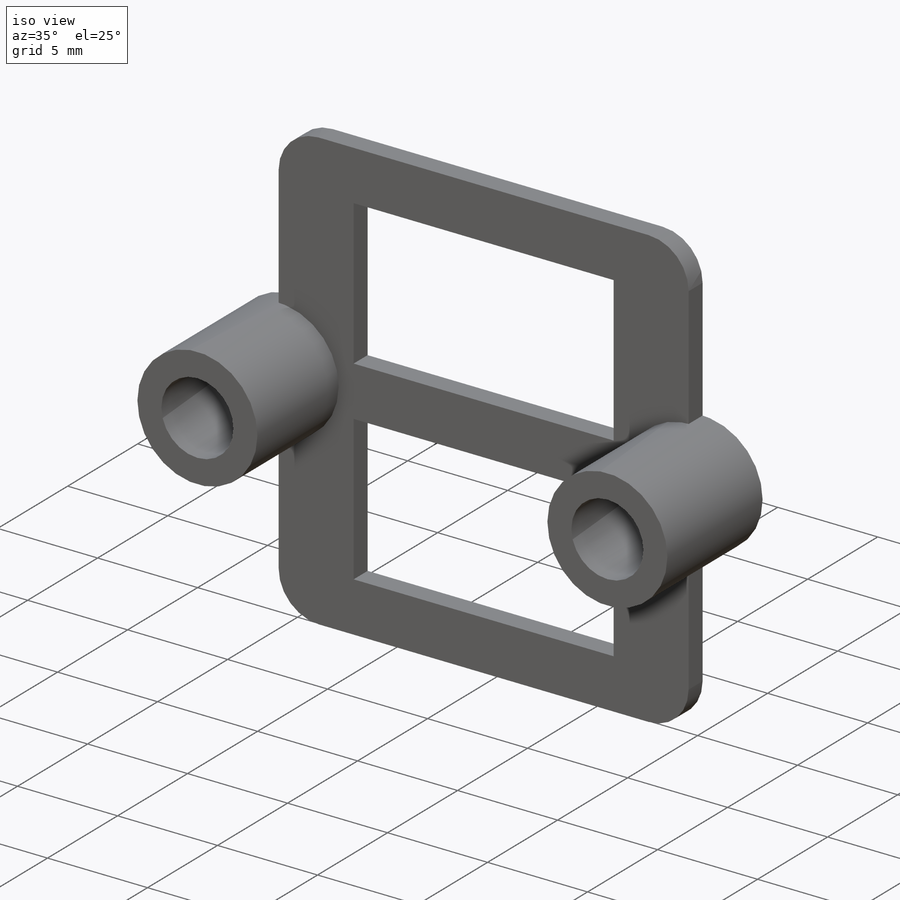
[diagram: iso view]
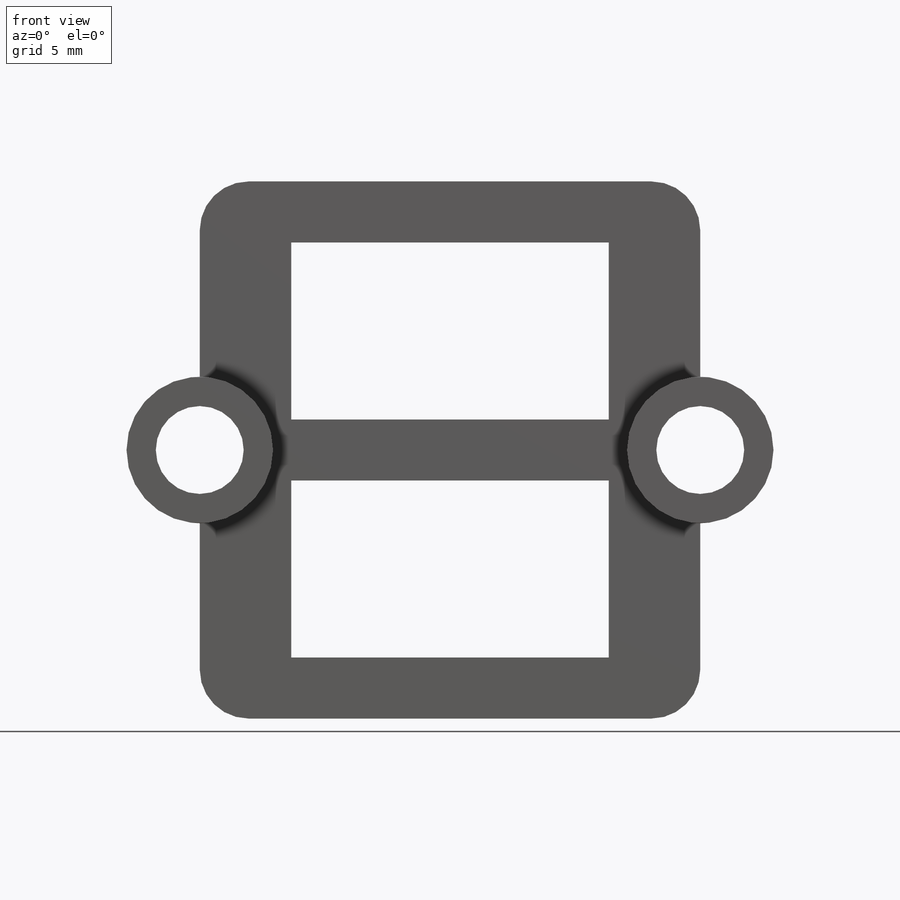
[diagram: front view]
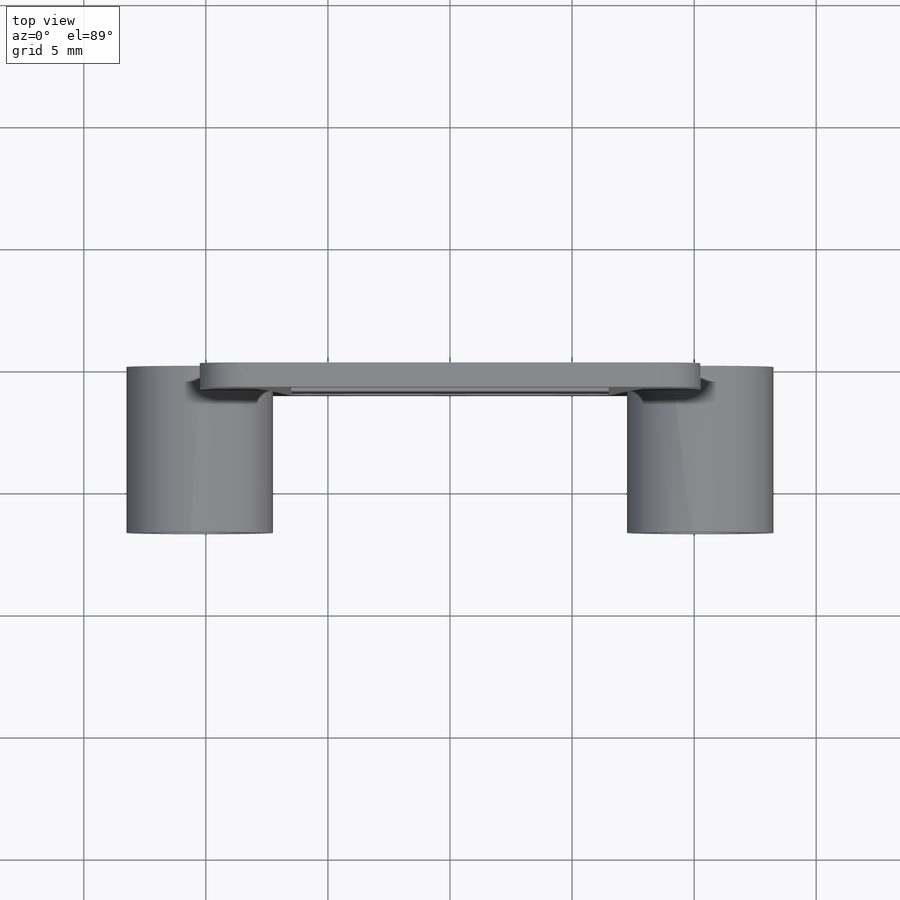
[diagram: top view]
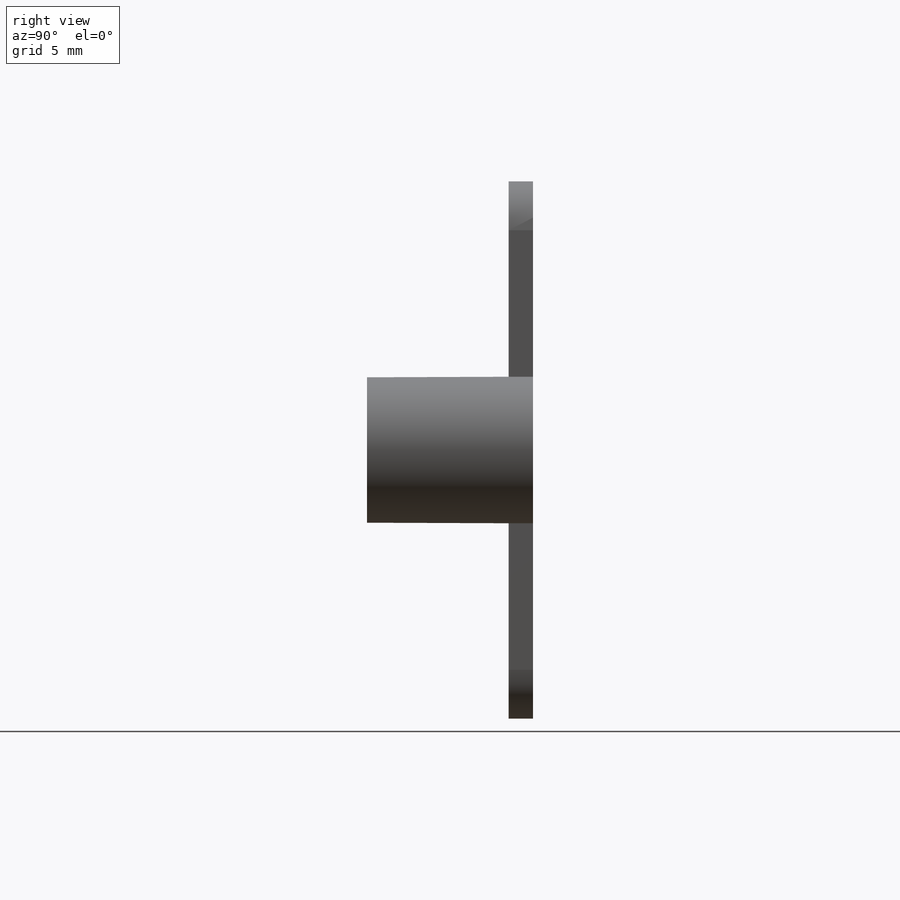
[diagram: right view]
SOLIDWORKS PART (.sldprt)
format: sldprt  version: not decoded by parser v0  size: 211,456 bytes
history: native  units: mm
features: fillet x4, sketch x2, extrude x2, material x1, plane x1 (+13 scaffold rows collapsed)
feature tree (23):
  scaffold x13  (default folders/planes/origin — collapsed)
  material  "Material <not specified>"
  sketch  "Sketch1"  dims[c1.D1=3.6mm c1.D3=3.0mm c1.D7=3.6mm c2.D1=11.0mm c2.D2=3.75mm c2.D3=3.75mm c2.D4=2.5mm c2.D5=2.5mm c2.D6=2.5mm]
  extrude  "Boss-Extrude1"  Depth=1mm
  plane  "Plane1"  Offset=0mm
  sketch  "Sketch2"  dims[D1=3.6mm D2=3.6mm]
  extrude  "Boss-Extrude2"  Depth=5.8mm
  fillet  "Fillet4"  Radius=2mm
  fillet  "Fillet5"  Radius=2mm
  fillet  "Fillet6"  Radius=2mm
  fillet  "Fillet7"  Radius=2mm
decode coverage: 8 of 8 modeling features carry decoded parameters
note: suppression state not decoded; provenance and decode notes live in map.json
